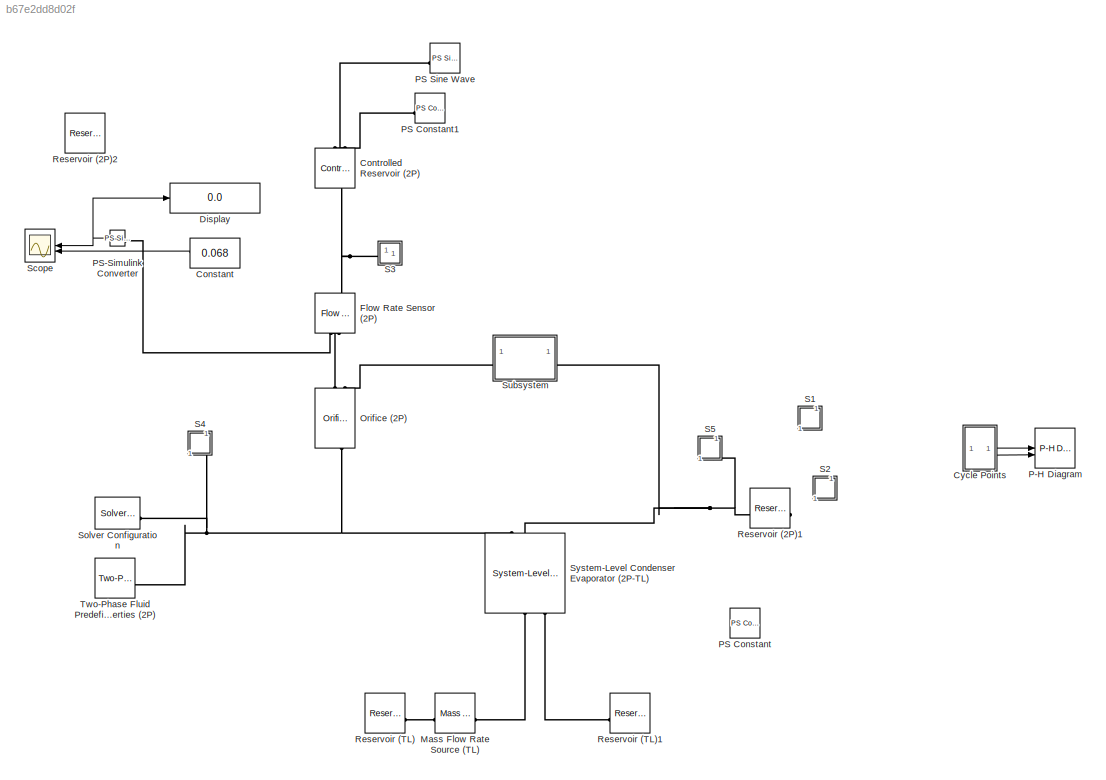
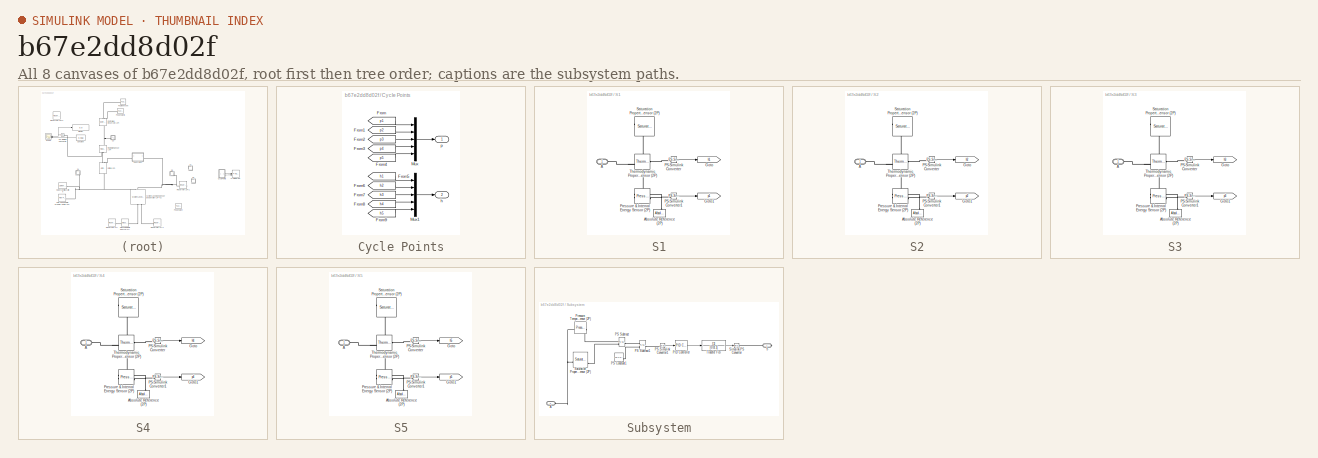
[diagram: thumbnail index - all 8 canvases of the model, root first then tree order]
MODEL slx_b67e2dd8d02f
KIND model
CONFIG AbsTol = 1e-3
CONFIG EnableMultiTasking = off
CONFIG FixedStep = auto
CONFIG MaxStep = auto
CONFIG MinStep = auto
CONFIG RelTol = 1e-3
CONFIG SampleTimeConstraint = Unconstrained
CONFIG SolverName = VariableStepAuto
CONFIG StartTime = 0.0
CONFIG StopTime = 300
BLOCK [Constant] Constant
  Value = 0.068
BLOCK [Reference] Controlled Reservoir (2P)  REF=fl_lib/Two-Phase Fluid/Elements/Controlled Reservoir
(2P)
  NameLocation = left
  SourceBlock = fl_lib/Two-Phase Fluid/Elements/Controlled Reservoir\n(2P)
  SourceType = Controlled Reservoir\n(2P)
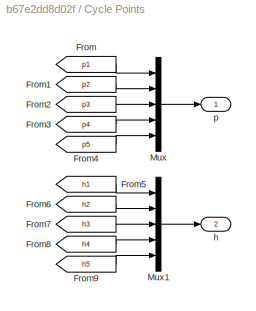
BLOCK [SubSystem] Cycle Points
BLOCK [From] Cycle Points/From
  GotoTag = p1
BLOCK [From] Cycle Points/From1
  GotoTag = p2
BLOCK [From] Cycle Points/From2
  GotoTag = p3
  TagVisibility = global
BLOCK [From] Cycle Points/From3
  GotoTag = p4
  TagVisibility = global
BLOCK [From] Cycle Points/From4
  GotoTag = p5
  TagVisibility = global
BLOCK [From] Cycle Points/From5
  GotoTag = h1
BLOCK [From] Cycle Points/From6
  GotoTag = h2
BLOCK [From] Cycle Points/From7
  GotoTag = h3
  TagVisibility = global
BLOCK [From] Cycle Points/From8
  GotoTag = h4
  TagVisibility = global
BLOCK [From] Cycle Points/From9
  GotoTag = h5
  TagVisibility = global
BLOCK [Mux] Cycle Points/Mux
  DisplayOption = bar
  Inputs = 5
BLOCK [Mux] Cycle Points/Mux1
  DisplayOption = bar
  Inputs = 5
BLOCK [Outport] Cycle Points/h
  Port = 2
BLOCK [Outport] Cycle Points/p
BLOCK [Display] Display
  Decimation = 1
BLOCK [Reference] Flow Rate Sensor (2P)  REF=fl_lib/Two-Phase Fluid/Sensors/Flow Rate Sensor
(2P)
  NameLocation = right
  SourceBlock = fl_lib/Two-Phase Fluid/Sensors/Flow Rate Sensor\n(2P)
  SourceType = Flow Rate Sensor\n(2P)
BLOCK [Reference] Mass Flow Rate Source (TL)  REF=fl_lib/Thermal Liquid/Sources/Mass Flow Rate
Source (TL)
  SourceBlock = fl_lib/Thermal Liquid/Sources/Mass Flow Rate\nSource (TL)
  SourceType = Mass Flow Rate\nSource (TL)
BLOCK [Reference] Orifice (2P)  REF=SimscapeFluids_lib/Two-Phase Fluid/Valves & Orifices/Orifice (2P)
  NameLocation = right
  SourceBlock = SimscapeFluids_lib/Two-Phase Fluid/Valves & Orifices/Orifice (2P)
  SourceType = Orifice (2P)
BLOCK [Reference] P-H Diagram  REF=SimscapeFluids_lib/Two-Phase Fluid/Utilities/P-H Diagram (2P)
  SourceBlock = SimscapeFluids_lib/Two-Phase Fluid/Utilities/P-H Diagram (2P)
  SourceType = P-H Diagram (2P)
  UserDataPersistent = on
BLOCK [Reference] PS Constant  REF=fl_lib/Physical Signals/Sources/PS Constant
  NameLocation = top
  SourceBlock = fl_lib/Physical Signals/Sources/PS Constant
  SourceType = PS Constant
BLOCK [Reference] PS Constant1  REF=fl_lib/Physical Signals/Sources/PS Constant
  SourceBlock = fl_lib/Physical Signals/Sources/PS Constant
  SourceType = PS Constant
BLOCK [Reference] PS Sine Wave  REF=fl_lib/Physical Signals/Sources/PS Sine Wave
  SourceBlock = fl_lib/Physical Signals/Sources/PS Sine Wave
  SourceType = PS Sine Wave
BLOCK [Reference] PS-Simulink Converter  REF=nesl_utility/PS-Simulink
Converter
  SourceBlock = nesl_utility/PS-Simulink\nConverter
  SourceType = PS-Simulink\nConverter
BLOCK [Reference] Reservoir (2P)1  REF=fl_lib/Two-Phase Fluid/Elements/Reservoir (2P)
  NameLocation = top
  SourceBlock = fl_lib/Two-Phase Fluid/Elements/Reservoir (2P)
  SourceType = Reservoir (2P)
BLOCK [Reference] Reservoir (2P)2  REF=fl_lib/Two-Phase Fluid/Elements/Reservoir (2P)
  NameLocation = left
  SourceBlock = fl_lib/Two-Phase Fluid/Elements/Reservoir (2P)
  SourceType = Reservoir (2P)
BLOCK [Reference] Reservoir (TL)  REF=fl_lib/Thermal Liquid/Elements/Reservoir (TL)
  SourceBlock = fl_lib/Thermal Liquid/Elements/Reservoir (TL)
  SourceType = Reservoir (TL)
BLOCK [Reference] Reservoir (TL)1  REF=fl_lib/Thermal Liquid/Elements/Reservoir (TL)
  SourceBlock = fl_lib/Thermal Liquid/Elements/Reservoir (TL)
  SourceType = Reservoir (TL)
BLOCK [SubSystem] S1
  Commented = on
  NameLocation = right
BLOCK [PMIOPort] S1/A
  Side = Left
BLOCK [Reference] S1/Absolute Reference (2P)  REF=fl_lib/Two-Phase Fluid/Elements/Absolute Reference
(2P)
  NameLocation = right
  SourceBlock = fl_lib/Two-Phase Fluid/Elements/Absolute Reference\n(2P)
  SourceType = Absolute Reference\n(2P)
BLOCK [Goto] S1/Goto
  GotoTag = h1
  TagVisibility = global
BLOCK [Goto] S1/Goto1
  GotoTag = p1
  TagVisibility = global
BLOCK [Reference] S1/PS-Simulink Converter  REF=nesl_utility/PS-Simulink
Converter
  SourceBlock = nesl_utility/PS-Simulink\nConverter
  SourceType = PS-Simulink\nConverter
BLOCK [Reference] S1/PS-Simulink Converter1  REF=nesl_utility/PS-Simulink
Converter
  SourceBlock = nesl_utility/PS-Simulink\nConverter
  SourceType = PS-Simulink\nConverter
BLOCK [Reference] S1/Pressure & Internal Energy Sensor (2P)  REF=fl_lib/Two-Phase Fluid/Sensors/Pressure,
Temperature &
Internal Energy
Sensor (2P)
  SourceBlock = fl_lib/Two-Phase Fluid/Sensors/Pressure,\nTemperature &\nInternal Energy\nSensor (2P)
  SourceType = Pressure,\nTemperature &\nInternal Energy\nSensor (2P)
BLOCK [Reference] S1/Saturation Properties Sensor (2P)  REF=fl_lib/Two-Phase Fluid/Sensors/Saturation
Properties Sensor
(2P)
  SourceBlock = fl_lib/Two-Phase Fluid/Sensors/Saturation\nProperties Sensor\n(2P)
  SourceType = Saturation\nProperties Sensor\n(2P)
BLOCK [Reference] S1/Thermodynamic Properties Sensor (2P)  REF=fl_lib/Two-Phase Fluid/Sensors/Thermodynamic
Properties Sensor
(2P)
  SourceBlock = fl_lib/Two-Phase Fluid/Sensors/Thermodynamic\nProperties Sensor\n(2P)
  SourceType = Thermodynamic\nProperties Sensor\n(2P)
BLOCK [SubSystem] S2
  Commented = on
  NameLocation = right
BLOCK [PMIOPort] S2/A
  Side = Left
BLOCK [Reference] S2/Absolute Reference (2P)  REF=fl_lib/Two-Phase Fluid/Elements/Absolute Reference
(2P)
  NameLocation = right
  SourceBlock = fl_lib/Two-Phase Fluid/Elements/Absolute Reference\n(2P)
  SourceType = Absolute Reference\n(2P)
BLOCK [Goto] S2/Goto
  GotoTag = h2
  TagVisibility = global
BLOCK [Goto] S2/Goto1
  GotoTag = p2
  TagVisibility = global
BLOCK [Reference] S2/PS-Simulink Converter  REF=nesl_utility/PS-Simulink
Converter
  SourceBlock = nesl_utility/PS-Simulink\nConverter
  SourceType = PS-Simulink\nConverter
BLOCK [Reference] S2/PS-Simulink Converter1  REF=nesl_utility/PS-Simulink
Converter
  SourceBlock = nesl_utility/PS-Simulink\nConverter
  SourceType = PS-Simulink\nConverter
BLOCK [Reference] S2/Pressure & Internal Energy Sensor (2P)  REF=fl_lib/Two-Phase Fluid/Sensors/Pressure,
Temperature &
Internal Energy
Sensor (2P)
  SourceBlock = fl_lib/Two-Phase Fluid/Sensors/Pressure,\nTemperature &\nInternal Energy\nSensor (2P)
  SourceType = Pressure,\nTemperature &\nInternal Energy\nSensor (2P)
BLOCK [Reference] S2/Saturation Properties Sensor (2P)  REF=fl_lib/Two-Phase Fluid/Sensors/Saturation
Properties Sensor
(2P)
  SourceBlock = fl_lib/Two-Phase Fluid/Sensors/Saturation\nProperties Sensor\n(2P)
  SourceType = Saturation\nProperties Sensor\n(2P)
BLOCK [Reference] S2/Thermodynamic Properties Sensor (2P)  REF=fl_lib/Two-Phase Fluid/Sensors/Thermodynamic
Properties Sensor
(2P)
  SourceBlock = fl_lib/Two-Phase Fluid/Sensors/Thermodynamic\nProperties Sensor\n(2P)
  SourceType = Thermodynamic\nProperties Sensor\n(2P)
BLOCK [SubSystem] S3
BLOCK [PMIOPort] S3/A
  Side = Left
BLOCK [Reference] S3/Absolute Reference (2P)  REF=fl_lib/Two-Phase Fluid/Elements/Absolute Reference
(2P)
  NameLocation = right
  SourceBlock = fl_lib/Two-Phase Fluid/Elements/Absolute Reference\n(2P)
  SourceType = Absolute Reference\n(2P)
BLOCK [Goto] S3/Goto
  GotoTag = h3
  TagVisibility = global
BLOCK [Goto] S3/Goto1
  GotoTag = p3
  TagVisibility = global
BLOCK [Reference] S3/PS-Simulink Converter  REF=nesl_utility/PS-Simulink
Converter
  SourceBlock = nesl_utility/PS-Simulink\nConverter
  SourceType = PS-Simulink\nConverter
BLOCK [Reference] S3/PS-Simulink Converter1  REF=nesl_utility/PS-Simulink
Converter
  SourceBlock = nesl_utility/PS-Simulink\nConverter
  SourceType = PS-Simulink\nConverter
BLOCK [Reference] S3/Pressure & Internal Energy Sensor (2P)  REF=fl_lib/Two-Phase Fluid/Sensors/Pressure,
Temperature &
Internal Energy
Sensor (2P)
  SourceBlock = fl_lib/Two-Phase Fluid/Sensors/Pressure,\nTemperature &\nInternal Energy\nSensor (2P)
  SourceType = Pressure,\nTemperature &\nInternal Energy\nSensor (2P)
BLOCK [Reference] S3/Saturation Properties Sensor (2P)  REF=fl_lib/Two-Phase Fluid/Sensors/Saturation
Properties Sensor
(2P)
  SourceBlock = fl_lib/Two-Phase Fluid/Sensors/Saturation\nProperties Sensor\n(2P)
  SourceType = Saturation\nProperties Sensor\n(2P)
BLOCK [Reference] S3/Thermodynamic Properties Sensor (2P)  REF=fl_lib/Two-Phase Fluid/Sensors/Thermodynamic
Properties Sensor
(2P)
  SourceBlock = fl_lib/Two-Phase Fluid/Sensors/Thermodynamic\nProperties Sensor\n(2P)
  SourceType = Thermodynamic\nProperties Sensor\n(2P)
BLOCK [SubSystem] S4
  NameLocation = right
BLOCK [PMIOPort] S4/A
  Side = Left
BLOCK [Reference] S4/Absolute Reference (2P)  REF=fl_lib/Two-Phase Fluid/Elements/Absolute Reference
(2P)
  NameLocation = right
  SourceBlock = fl_lib/Two-Phase Fluid/Elements/Absolute Reference\n(2P)
  SourceType = Absolute Reference\n(2P)
BLOCK [Goto] S4/Goto
  GotoTag = h4
  TagVisibility = global
BLOCK [Goto] S4/Goto1
  GotoTag = p4
  TagVisibility = global
BLOCK [Reference] S4/PS-Simulink Converter  REF=nesl_utility/PS-Simulink
Converter
  SourceBlock = nesl_utility/PS-Simulink\nConverter
  SourceType = PS-Simulink\nConverter
BLOCK [Reference] S4/PS-Simulink Converter1  REF=nesl_utility/PS-Simulink
Converter
  SourceBlock = nesl_utility/PS-Simulink\nConverter
  SourceType = PS-Simulink\nConverter
BLOCK [Reference] S4/Pressure & Internal Energy Sensor (2P)  REF=fl_lib/Two-Phase Fluid/Sensors/Pressure,
Temperature &
Internal Energy
Sensor (2P)
  SourceBlock = fl_lib/Two-Phase Fluid/Sensors/Pressure,\nTemperature &\nInternal Energy\nSensor (2P)
  SourceType = Pressure,\nTemperature &\nInternal Energy\nSensor (2P)
BLOCK [Reference] S4/Saturation Properties Sensor (2P)  REF=fl_lib/Two-Phase Fluid/Sensors/Saturation
Properties Sensor
(2P)
  SourceBlock = fl_lib/Two-Phase Fluid/Sensors/Saturation\nProperties Sensor\n(2P)
  SourceType = Saturation\nProperties Sensor\n(2P)
BLOCK [Reference] S4/Thermodynamic Properties Sensor (2P)  REF=fl_lib/Two-Phase Fluid/Sensors/Thermodynamic
Properties Sensor
(2P)
  SourceBlock = fl_lib/Two-Phase Fluid/Sensors/Thermodynamic\nProperties Sensor\n(2P)
  SourceType = Thermodynamic\nProperties Sensor\n(2P)
BLOCK [SubSystem] S5
  NameLocation = right
BLOCK [PMIOPort] S5/A
  Side = Left
BLOCK [Reference] S5/Absolute Reference (2P)  REF=fl_lib/Two-Phase Fluid/Elements/Absolute Reference
(2P)
  NameLocation = right
  SourceBlock = fl_lib/Two-Phase Fluid/Elements/Absolute Reference\n(2P)
  SourceType = Absolute Reference\n(2P)
BLOCK [Goto] S5/Goto
  GotoTag = h5
  TagVisibility = global
BLOCK [Goto] S5/Goto1
  GotoTag = p5
  TagVisibility = global
BLOCK [Reference] S5/PS-Simulink Converter  REF=nesl_utility/PS-Simulink
Converter
  SourceBlock = nesl_utility/PS-Simulink\nConverter
  SourceType = PS-Simulink\nConverter
BLOCK [Reference] S5/PS-Simulink Converter1  REF=nesl_utility/PS-Simulink
Converter
  SourceBlock = nesl_utility/PS-Simulink\nConverter
  SourceType = PS-Simulink\nConverter
BLOCK [Reference] S5/Pressure & Internal Energy Sensor (2P)  REF=fl_lib/Two-Phase Fluid/Sensors/Pressure,
Temperature &
Internal Energy
Sensor (2P)
  SourceBlock = fl_lib/Two-Phase Fluid/Sensors/Pressure,\nTemperature &\nInternal Energy\nSensor (2P)
  SourceType = Pressure,\nTemperature &\nInternal Energy\nSensor (2P)
BLOCK [Reference] S5/Saturation Properties Sensor (2P)  REF=fl_lib/Two-Phase Fluid/Sensors/Saturation
Properties Sensor
(2P)
  SourceBlock = fl_lib/Two-Phase Fluid/Sensors/Saturation\nProperties Sensor\n(2P)
  SourceType = Saturation\nProperties Sensor\n(2P)
BLOCK [Reference] S5/Thermodynamic Properties Sensor (2P)  REF=fl_lib/Two-Phase Fluid/Sensors/Thermodynamic
Properties Sensor
(2P)
  SourceBlock = fl_lib/Two-Phase Fluid/Sensors/Thermodynamic\nProperties Sensor\n(2P)
  SourceType = Thermodynamic\nProperties Sensor\n(2P)
BLOCK [Scope] Scope
  Floating = off
  NumInputPorts = 2
  ScopeSpecificationString = Simulink.scopes.TimeScopeBlockCfg('CurrentConfiguration', extmgr.ConfigurationSet(extmgr.Configuration('Core','General UI',true),extmgr.Configuration('Core','Source UI',true),extmgr.Configuration('Sources','WiredSimulink',true),extmgr.Configuration('Visuals','Time Domain',true,'SerializedDisplays',{struct('MinYLimReal','-0.01149','MaxYLimReal','0.10343','YLabelReal','','MinYLimMag','0.00000','MaxY...<+1320ch>
BLOCK [Reference] Solver Configuration  REF=nesl_utility/Solver
Configuration
  SourceBlock = nesl_utility/Solver\nConfiguration
  SourceType = Solver\nConfiguration
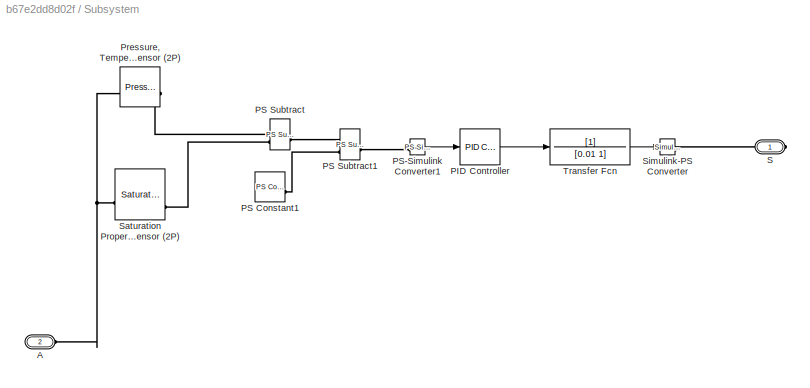
BLOCK [SubSystem] Subsystem
BLOCK [PMIOPort] Subsystem/A
  Port = 2
  Side = Left
BLOCK [Reference] Subsystem/PID Controller  REF=slpidlib/PID Controller
  LibrarySourceBlock = simulink/Continuous/PID Controller
  SourceBlock = slpidlib/PID Controller
  SourceType = PID 1dof
BLOCK [Reference] Subsystem/PS Constant1  REF=fl_lib/Physical Signals/Sources/PS Constant
  SourceBlock = fl_lib/Physical Signals/Sources/PS Constant
  SourceType = PS Constant
BLOCK [Reference] Subsystem/PS Subtract  REF=fl_lib/Physical Signals/Functions/PS Subtract
  SourceBlock = fl_lib/Physical Signals/Functions/PS Subtract
  SourceType = PS Subtract
BLOCK [Reference] Subsystem/PS Subtract1  REF=fl_lib/Physical Signals/Functions/PS Subtract
  SourceBlock = fl_lib/Physical Signals/Functions/PS Subtract
  SourceType = PS Subtract
BLOCK [Reference] Subsystem/PS-Simulink Converter1  REF=nesl_utility/PS-Simulink
Converter
  SourceBlock = nesl_utility/PS-Simulink\nConverter
  SourceType = PS-Simulink\nConverter
BLOCK [Reference] Subsystem/Pressure, Temperature & Internal Energy Sensor (2P)  REF=fl_lib/Two-Phase Fluid/Sensors/Pressure,
Temperature &
Internal Energy
Sensor (2P)
  SourceBlock = fl_lib/Two-Phase Fluid/Sensors/Pressure,\nTemperature &\nInternal Energy\nSensor (2P)
  SourceType = Pressure,\nTemperature &\nInternal Energy\nSensor (2P)
BLOCK [PMIOPort] Subsystem/S
  Side = Right
BLOCK [Reference] Subsystem/Saturation Properties Sensor (2P)  REF=fl_lib/Two-Phase Fluid/Sensors/Saturation
Properties Sensor
(2P)
  SourceBlock = fl_lib/Two-Phase Fluid/Sensors/Saturation\nProperties Sensor\n(2P)
  SourceType = Saturation\nProperties Sensor\n(2P)
BLOCK [Reference] Subsystem/Simulink-PS Converter  REF=nesl_utility/Simulink-PS
Converter
  SourceBlock = nesl_utility/Simulink-PS\nConverter
  SourceType = Simulink-PS\nConverter
BLOCK [TransferFcn] Subsystem/Transfer Fcn
  Denominator = [0.01 1]
BLOCK [Reference] System-Level Condenser Evaporator (2P-TL)  REF=SimscapeFluids_lib/Fluid Network
Interfaces/Heat Exchangers/System-Level
Condenser Evaporator
(2P-TL)
  NameLocation = right
  SourceBlock = SimscapeFluids_lib/Fluid Network\nInterfaces/Heat Exchangers/System-Level\nCondenser Evaporator\n(2P-TL)
  SourceType = System-Level\nCondenser Evaporator\n(2P-TL)
BLOCK [Reference] Two-Phase Fluid Predefined Properties (2P)  REF=SimscapeFluids_lib/Two-Phase Fluid/Utilities/Two-Phase Fluid
Predefined
Properties (2P)
  SourceBlock = SimscapeFluids_lib/Two-Phase Fluid/Utilities/Two-Phase Fluid\nPredefined\nProperties (2P)
  SourceType = Two-Phase Fluid\nPredefined\nProperties (2P)
LINE Constant:1 -> Scope:2
LINE Cycle Points/From1:1 -> Cycle Points/Mux:2
LINE Cycle Points/From2:1 -> Cycle Points/Mux:3
LINE Cycle Points/From3:1 -> Cycle Points/Mux:4
LINE Cycle Points/From4:1 -> Cycle Points/Mux:5
LINE Cycle Points/From5:1 -> Cycle Points/Mux1:1
LINE Cycle Points/From6:1 -> Cycle Points/Mux1:2
LINE Cycle Points/From7:1 -> Cycle Points/Mux1:3
LINE Cycle Points/From8:1 -> Cycle Points/Mux1:4
LINE Cycle Points/From9:1 -> Cycle Points/Mux1:5
LINE Cycle Points/From:1 -> Cycle Points/Mux:1
LINE Cycle Points/Mux1:1 -> Cycle Points/h:1
LINE Cycle Points/Mux:1 -> Cycle Points/p:1
LINE Cycle Points:1 -> P-H Diagram:1
LINE Cycle Points:2 -> P-H Diagram:2
NET PS-Simulink Converter:1 -> Display:1, Scope:1
LINE S1/PS-Simulink Converter1:1 -> S1/Goto1:1
LINE S1/PS-Simulink Converter:1 -> S1/Goto:1
LINE S2/PS-Simulink Converter1:1 -> S2/Goto1:1
LINE S2/PS-Simulink Converter:1 -> S2/Goto:1
LINE S3/PS-Simulink Converter1:1 -> S3/Goto1:1
LINE S3/PS-Simulink Converter:1 -> S3/Goto:1
LINE S4/PS-Simulink Converter1:1 -> S4/Goto1:1
LINE S4/PS-Simulink Converter:1 -> S4/Goto:1
LINE S5/PS-Simulink Converter1:1 -> S5/Goto1:1
LINE S5/PS-Simulink Converter:1 -> S5/Goto:1
LINE Subsystem/PID Controller:1 -> Subsystem/Transfer Fcn:1
LINE Subsystem/PS-Simulink Converter1:1 -> Subsystem/PID Controller:1
LINE Subsystem/Transfer Fcn:1 -> Subsystem/Simulink-PS Converter:1
PNET net1: Controlled Reservoir (2P):LConn1 -- Flow Rate Sensor (2P):LConn1 -- S3:LConn1
PLINE Controlled Reservoir (2P):RConn1 -- PS Constant1:RConn1
PLINE Controlled Reservoir (2P):RConn2 -- PS Sine Wave:RConn1
PLINE Flow Rate Sensor (2P):RConn1 -- Orifice (2P):LConn1
PLINE Flow Rate Sensor (2P):RConn2 -- PS-Simulink Converter:LConn1
PLINE Mass Flow Rate Source (TL):LConn1 -- Reservoir (TL):LConn1
PLINE Mass Flow Rate Source (TL):RConn1 -- System-Level Condenser Evaporator (2P-TL):RConn1
PLINE Orifice (2P):LConn2 -- Subsystem:RConn1
PNET net2: Orifice (2P):RConn1 -- S4:LConn1 -- Solver Configuration:RConn1 -- System-Level Condenser Evaporator (2P-TL):LConn1 -- Two-Phase Fluid Predefined Properties (2P):RConn1
PNET net3: Reservoir (2P)1:LConn1 -- S5:LConn1 -- Subsystem:LConn1 -- System-Level Condenser Evaporator (2P-TL):LConn2
PLINE Reservoir (TL)1:LConn1 -- System-Level Condenser Evaporator (2P-TL):RConn2
PNET net4: S1/A:RConn1 -- S1/Pressure & Internal Energy Sensor (2P):LConn1 -- S1/Saturation Properties Sensor (2P):LConn1 -- S1/Thermodynamic Properties Sensor (2P):LConn1
PLINE S1/Absolute Reference (2P):LConn1 -- S1/Pressure & Internal Energy Sensor (2P):RConn1
PLINE S1/PS-Simulink Converter1:LConn1 -- S1/Pressure & Internal Energy Sensor (2P):RConn2
PLINE S1/PS-Simulink Converter:LConn1 -- S1/Thermodynamic Properties Sensor (2P):RConn2
PNET net5: S2/A:RConn1 -- S2/Pressure & Internal Energy Sensor (2P):LConn1 -- S2/Saturation Properties Sensor (2P):LConn1 -- S2/Thermodynamic Properties Sensor (2P):LConn1
PLINE S2/Absolute Reference (2P):LConn1 -- S2/Pressure & Internal Energy Sensor (2P):RConn1
PLINE S2/PS-Simulink Converter1:LConn1 -- S2/Pressure & Internal Energy Sensor (2P):RConn2
PLINE S2/PS-Simulink Converter:LConn1 -- S2/Thermodynamic Properties Sensor (2P):RConn2
PNET net6: S3/A:RConn1 -- S3/Pressure & Internal Energy Sensor (2P):LConn1 -- S3/Saturation Properties Sensor (2P):LConn1 -- S3/Thermodynamic Properties Sensor (2P):LConn1
PLINE S3/Absolute Reference (2P):LConn1 -- S3/Pressure & Internal Energy Sensor (2P):RConn1
PLINE S3/PS-Simulink Converter1:LConn1 -- S3/Pressure & Internal Energy Sensor (2P):RConn2
PLINE S3/PS-Simulink Converter:LConn1 -- S3/Thermodynamic Properties Sensor (2P):RConn2
PNET net7: S4/A:RConn1 -- S4/Pressure & Internal Energy Sensor (2P):LConn1 -- S4/Saturation Properties Sensor (2P):LConn1 -- S4/Thermodynamic Properties Sensor (2P):LConn1
PLINE S4/Absolute Reference (2P):LConn1 -- S4/Pressure & Internal Energy Sensor (2P):RConn1
PLINE S4/PS-Simulink Converter1:LConn1 -- S4/Pressure & Internal Energy Sensor (2P):RConn2
PLINE S4/PS-Simulink Converter:LConn1 -- S4/Thermodynamic Properties Sensor (2P):RConn2
PNET net8: S5/A:RConn1 -- S5/Pressure & Internal Energy Sensor (2P):LConn1 -- S5/Saturation Properties Sensor (2P):LConn1 -- S5/Thermodynamic Properties Sensor (2P):LConn1
PLINE S5/Absolute Reference (2P):LConn1 -- S5/Pressure & Internal Energy Sensor (2P):RConn1
PLINE S5/PS-Simulink Converter1:LConn1 -- S5/Pressure & Internal Energy Sensor (2P):RConn2
PLINE S5/PS-Simulink Converter:LConn1 -- S5/Thermodynamic Properties Sensor (2P):RConn2
PNET net9: Subsystem/A:RConn1 -- Subsystem/Pressure, Temperature & Internal Energy Sensor (2P):LConn1 -- Subsystem/Saturation Properties Sensor (2P):LConn1
PLINE Subsystem/PS Constant1:RConn1 -- Subsystem/PS Subtract1:LConn2
PLINE Subsystem/PS Subtract1:LConn1 -- Subsystem/PS Subtract:RConn1
PLINE Subsystem/PS Subtract1:RConn1 -- Subsystem/PS-Simulink Converter1:LConn1
PLINE Subsystem/PS Subtract:LConn1 -- Subsystem/Pressure, Temperature & Internal Energy Sensor (2P):RConn1
PLINE Subsystem/PS Subtract:LConn2 -- Subsystem/Saturation Properties Sensor (2P):RConn2
PLINE Subsystem/S:RConn1 -- Subsystem/Simulink-PS Converter:RConn1
note: NET lines group one-source signal fan-out (src -> all destinations, sorted); 1:1 wires keep LINE; PNET lines group multi-terminal physical nets as a canonical sorted terminal list (undirected conserving connections); 2-terminal nets keep the pairwise PLINE form
